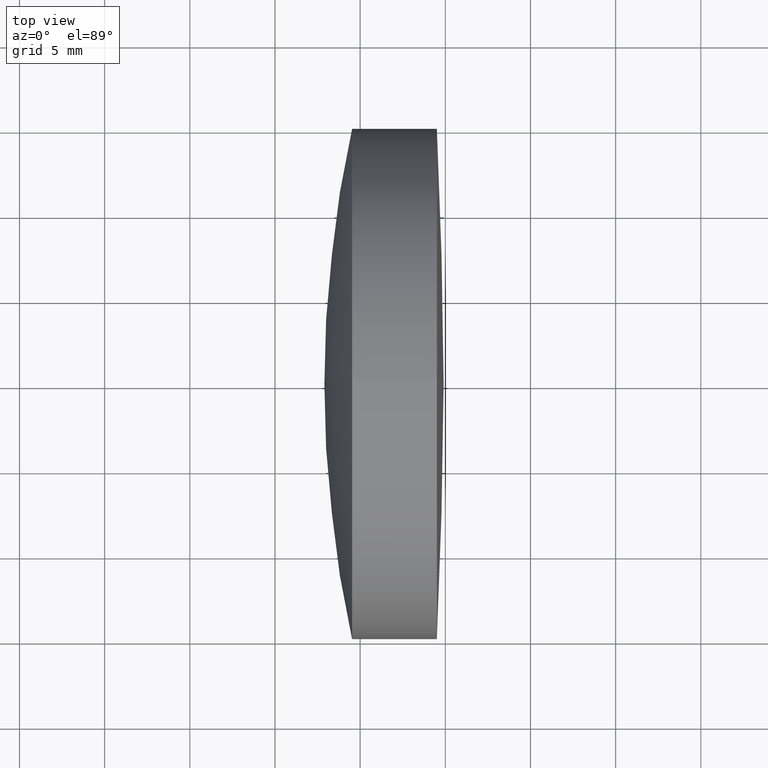
[diagram: clean part render]
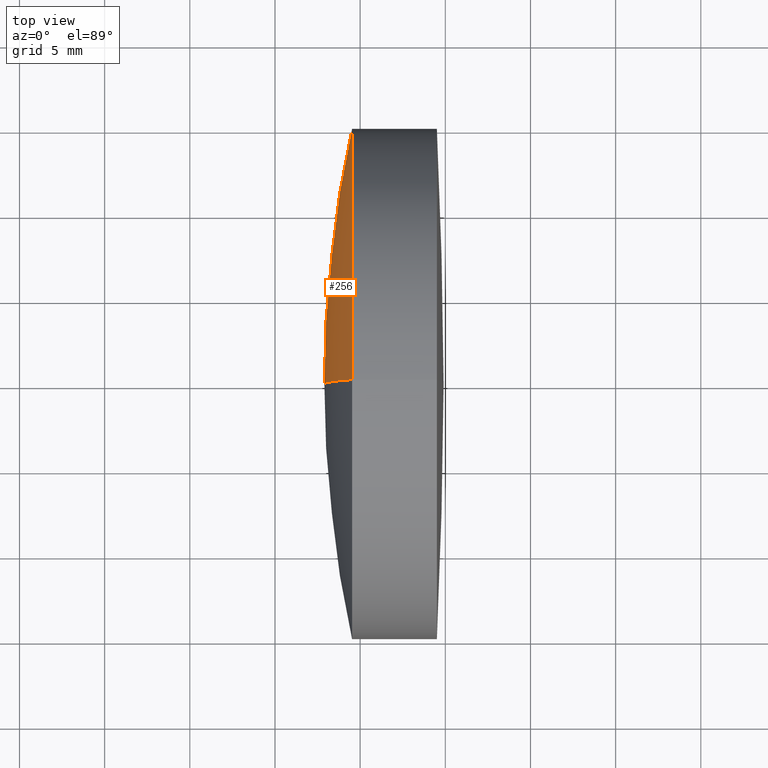
[diagram: same view with one face highlighted and labeled with its STEP entity id]
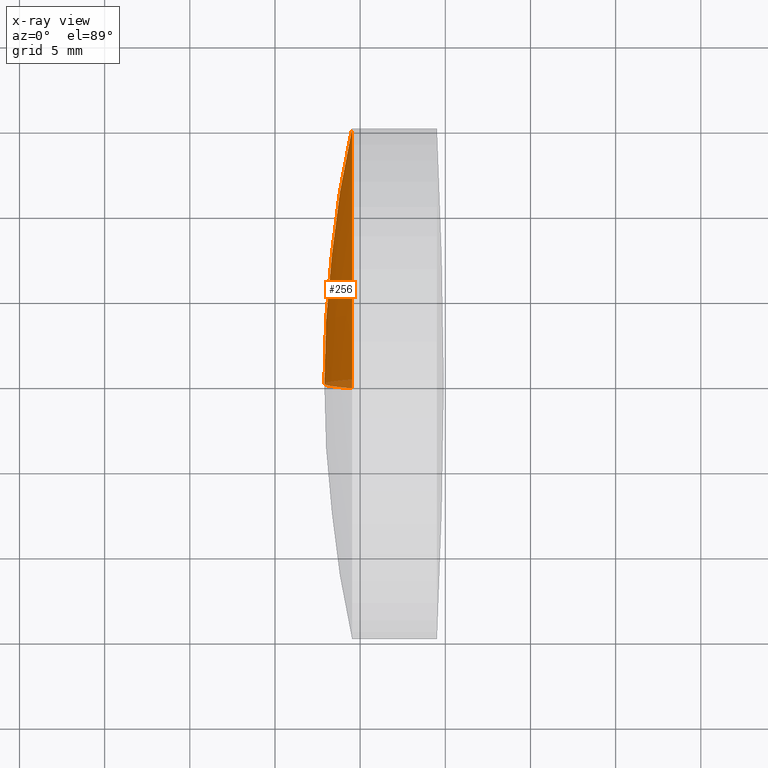
[diagram: x-ray of the same camera — body ghosted, the highlighted face saturated]
A machine part, top view. The second image highlights one B-rep face of the part: STEP entity #256.
The next image is the same camera in x-ray: the body ghosted, the highlighted face saturated — about 3% of this face is hidden behind the body in this view.
In plain terms, the highlighted spherical surface has radius 70 mm.
Its self-contained STEP definition (entity closure, byte-faithful):
#17 = CARTESIAN_POINT ( 'NONE',  ( 234.5265290828657800, 0.0000000000000000000, 14.99999999999989300 ) ) ;
#27 = CARTESIAN_POINT ( 'NONE',  ( 302.9005007387524400, 0.0000000000000000000, -2.198847408964090500E-013 ) ) ;
#34 = DIRECTION ( 'NONE',  ( -1.000000000000000000, -0.0000000000000000000, -0.0000000000000000000 ) ) ;
#42 = CARTESIAN_POINT ( 'NONE',  ( 302.9005007387524400, 0.0000000000000000000, -2.198847408964090500E-013 ) ) ;
#46 = VERTEX_POINT ( 'NONE', #17 ) ;
#61 = DIRECTION ( 'NONE',  ( -0.0000000000000000000, 1.000000000000000000, 1.224646799147353200E-016 ) ) ;
#62 = CARTESIAN_POINT ( 'NONE',  ( 234.5265290828657800, 1.836970198721017000E-015, -15.00000000000011400 ) ) ;
#86 = DIRECTION ( 'NONE',  ( 0.0000000000000000000, -1.224646799147353200E-016, 1.000000000000000000 ) ) ;
#103 = ORIENTED_EDGE ( 'NONE', *, *, #133, .T. ) ;
#106 = ORIENTED_EDGE ( 'NONE', *, *, #254, .F. ) ;
#118 = SPHERICAL_SURFACE ( 'NONE', #283, 69.99999999999998600 ) ;
#133 = EDGE_CURVE ( 'NONE', #328, #237, #203, .T. ) ;
#172 = DIRECTION ( 'NONE',  ( 0.0000000000000000000, 1.000000000000000000, 0.0000000000000000000 ) ) ;
#175 = CARTESIAN_POINT ( 'NONE',  ( 232.9005007387524700, 0.0000000000000000000, -2.155984770993932900E-013 ) ) ;
#180 = AXIS2_PLACEMENT_3D ( 'NONE', #27, #236, #258 ) ;
#186 = DIRECTION ( 'NONE',  ( 0.0000000000000000000, 0.0000000000000000000, 1.000000000000000000 ) ) ;
#189 = EDGE_CURVE ( 'NONE', #46, #328, #286, .T. ) ;
#201 = CARTESIAN_POINT ( 'NONE',  ( 302.9005007387524400, 0.0000000000000000000, -2.198847408964090500E-013 ) ) ;
#203 = CIRCLE ( 'NONE', #204, 69.99999999999998600 ) ;
#204 = AXIS2_PLACEMENT_3D ( 'NONE', #42, #61, #86 ) ;
#214 = CARTESIAN_POINT ( 'NONE',  ( 234.5265290828657800, 0.0000000000000000000, 0.0000000000000000000 ) ) ;
#218 = CIRCLE ( 'NONE', #180, 69.99999999999998600 ) ;
#233 = EDGE_LOOP ( 'NONE', ( #274, #103, #106 ) ) ;
#236 = DIRECTION ( 'NONE',  ( 0.0000000000000000000, -1.000000000000000000, 0.0000000000000000000 ) ) ;
#237 = VERTEX_POINT ( 'NONE', #175 ) ;
#249 = DIRECTION ( 'NONE',  ( 0.0000000000000000000, 0.0000000000000000000, 1.000000000000000000 ) ) ;
#254 = EDGE_CURVE ( 'NONE', #46, #237, #218, .T. ) ;
#256 = ADVANCED_FACE ( 'NONE', ( #308 ), #118, .T. ) ;
#258 = DIRECTION ( 'NONE',  ( 0.0000000000000000000, 0.0000000000000000000, -1.000000000000000000 ) ) ;
#274 = ORIENTED_EDGE ( 'NONE', *, *, #189, .T. ) ;
#283 = AXIS2_PLACEMENT_3D ( 'NONE', #201, #172, #249 ) ;
#286 = CIRCLE ( 'NONE', #335, 14.99999999999990800 ) ;
#308 = FACE_OUTER_BOUND ( 'NONE', #233, .T. ) ;
#328 = VERTEX_POINT ( 'NONE', #62 ) ;
#335 = AXIS2_PLACEMENT_3D ( 'NONE', #214, #34, #186 ) ;